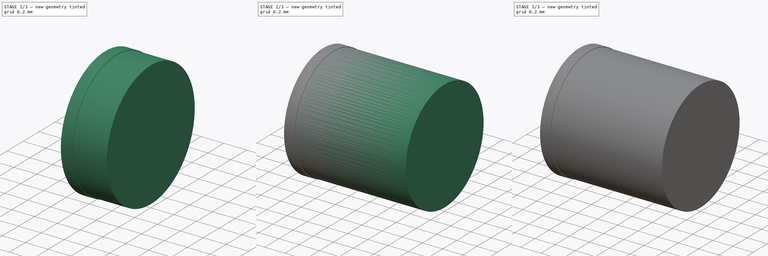
[diagram: build sequence overview — one tinted view per stage of 3, left to right]
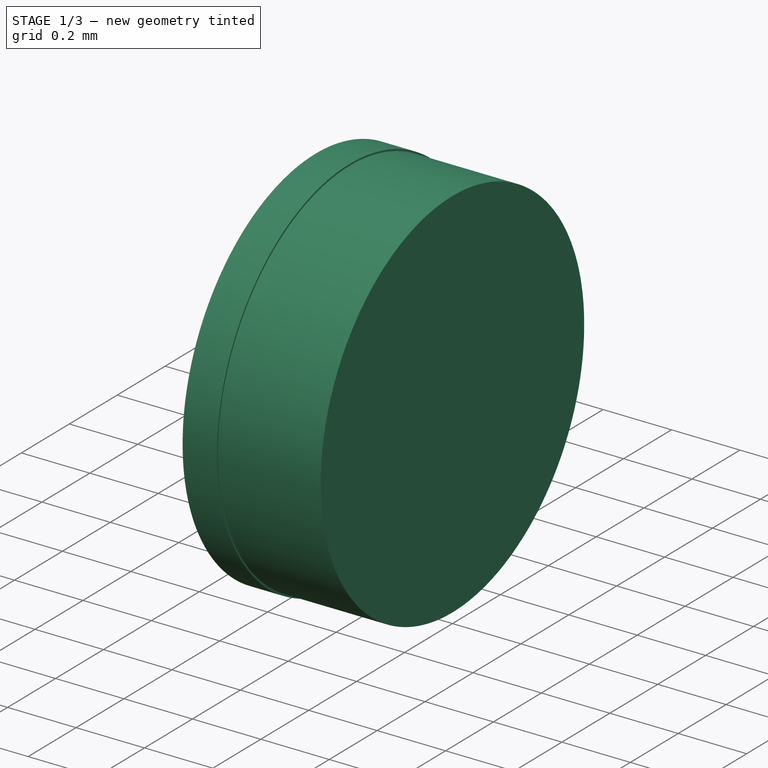
[diagram: stage 1 of 3 — iso view after this stage's code; geometry added in this stage tinted green]
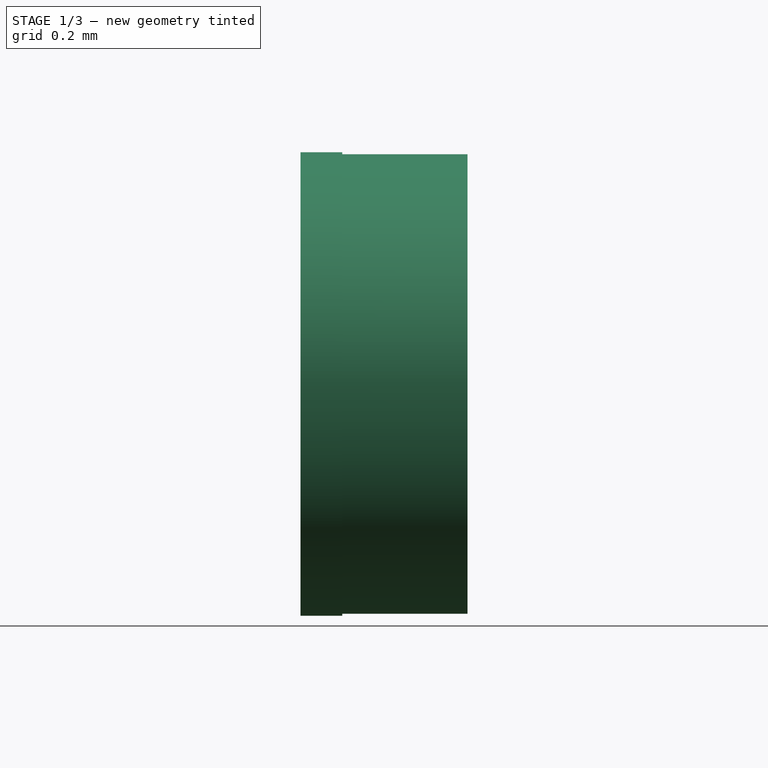
[diagram: stage 1 of 3 — front view after this stage's code; geometry added in this stage tinted green]
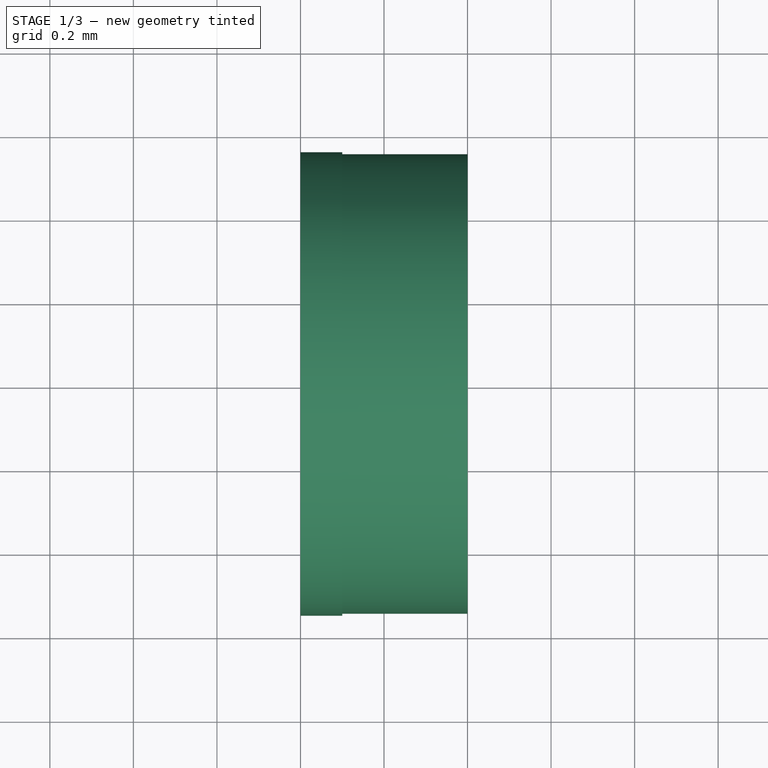
[diagram: stage 1 of 3 — top view after this stage's code; geometry added in this stage tinted green]
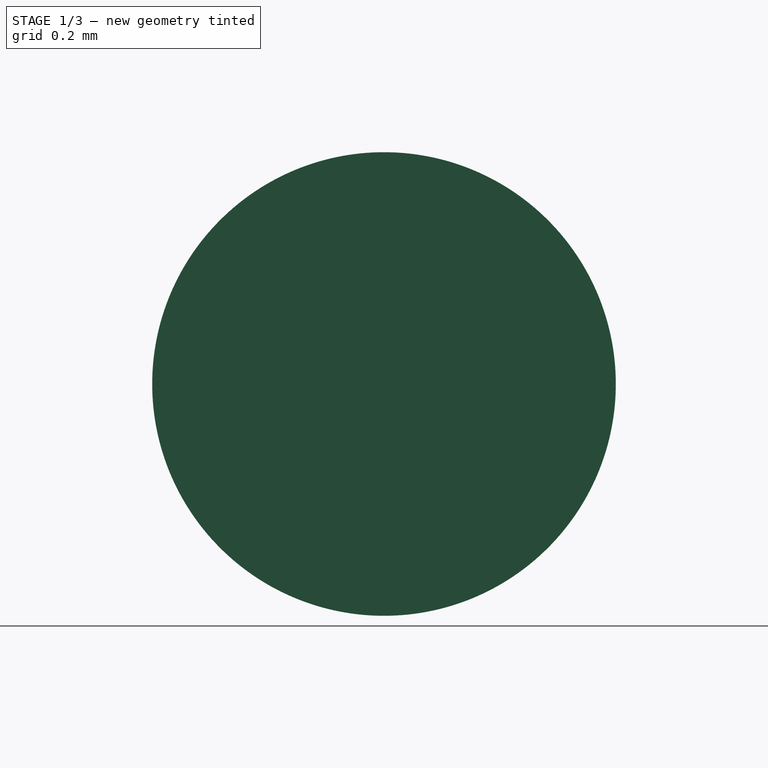
[diagram: stage 1 of 3 — right view after this stage's code; geometry added in this stage tinted green]
FCSTD DOCUMENT  (FreeCAD 0.18R4 (GitTag))
Label: diodeSmdSodMelf
License: All rights reserved
LicenseURL: http://en.wikipedia.org/wiki/All_rights_reserved
objects: Sketcher::SketchObject×4, PartDesign::Pad×4, PartDesign::Body×4, PartDesign::Chamfer×2, Spreadsheet::Sheet×1, App::Part×1
note: 18 computed .brp shape members not serialized (recipe doc carries the construction recipe); baked Part::Feature solids carry a one-line shape summary decoded from their .brp

FEATURE [PartDesign::Body] Body001
  Group = -> [Sketch001,Pad001]
  Origin = -> Origin002
  Placement = pos=(0.4,0,0) rot=(0,0,1;0rad)
  Tip = -> Pad001
  expr: Placement.Base.x = Spreadsheet.B1
FEATURE [Sketcher::SketchObject] Sketch002
  MapMode = 5
  Placement = pos=(0,0,0) rot=(0.57735,0.57735,0.57735;2.0944rad)
  Support = -> [YZ_Plane003]
  expr: Constraints[2] = Spreadsheet.B4
  expr: Constraints[1] = Spreadsheet.B2
  sketch-geometry (1):
    g0: Circle CenterX=0 CenterY=0.55 CenterZ=0 NormalX=0 NormalY=0 NormalZ=1 AngleXU=0 Radius=0.55
  constraints (3):
    c: PointOnObject(g0,g-2)
    c: Diameter(g0) = 1.1
    c: DistanceY(g0) = 0.55
FEATURE [PartDesign::Pad] Pad002
  Length = 0.4
  Length2 = 100
  Placement = pos=(0,0,0) rot=(0.57735,0.57735,0.57735;2.0944rad)
  Profile = -> Sketch002
  Type = 0
  expr: Length = Spreadsheet.B1
FEATURE [PartDesign::Body] Body002
  Group = -> [Sketch002,Pad002,Chamfer001]
  Origin = -> Origin003
  Placement = pos=(1.6,0,0) rot=(0,0,1;0rad)
  Tip = -> Chamfer001
  expr: Placement.Base.x = Spreadsheet.F3
FEATURE [Sketcher::SketchObject] Sketch003
  MapMode = 5
  Placement = pos=(0,0,0) rot=(0.57735,0.57735,0.57735;2.0944rad)
  Support = -> [YZ_Plane004]
  expr: Constraints[2] = Spreadsheet.B4
  expr: Constraints[1] = Spreadsheet.F2
  sketch-geometry (1):
    g0: Circle CenterX=0 CenterY=0.55 CenterZ=0 NormalX=0 NormalY=0 NormalZ=1 AngleXU=0 Radius=0.555
  constraints (3):
    c: PointOnObject(g0,g-2)
    c: Diameter(g0) = 1.11
    c: DistanceY(g0) = 0.55
FEATURE [PartDesign::Pad] Pad003
  Length = 0.1
  Length2 = 100
  Placement = pos=(0,0,0) rot=(0.57735,0.57735,0.57735;2.0944rad)
  Profile = -> Sketch003
  Type = 0
FEATURE [PartDesign::Body] Body003
  Group = -> [Sketch003,Pad003]
  Origin = -> Origin004
  Placement = pos=(0.6,0,0) rot=(0,0,1;0rad)
  Tip = -> Pad003
  expr: Placement.Base.x = Spreadsheet.F4
FEATURE [App::Part] Part
  Group = -> [Body,Body001,Body002,Body003,Spreadsheet]
  Origin = -> Origin
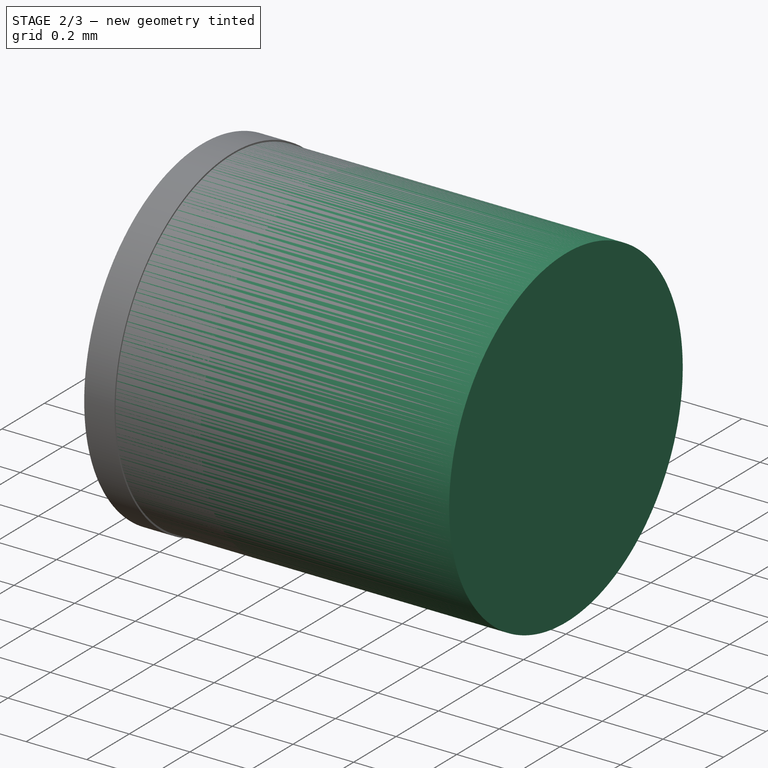
[diagram: stage 2 of 3 — iso view after this stage's code; geometry added in this stage tinted green]
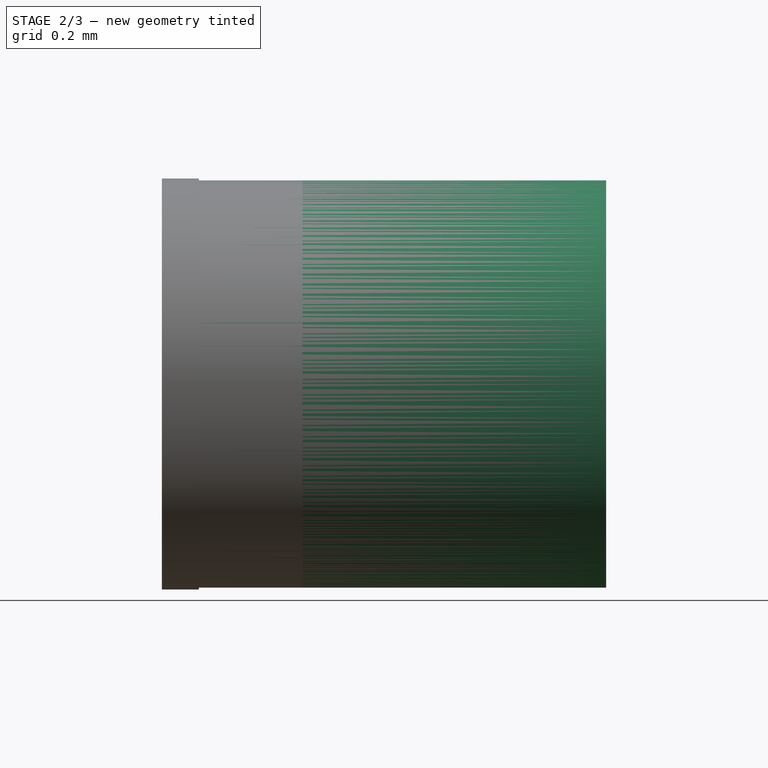
[diagram: stage 2 of 3 — front view after this stage's code; geometry added in this stage tinted green]
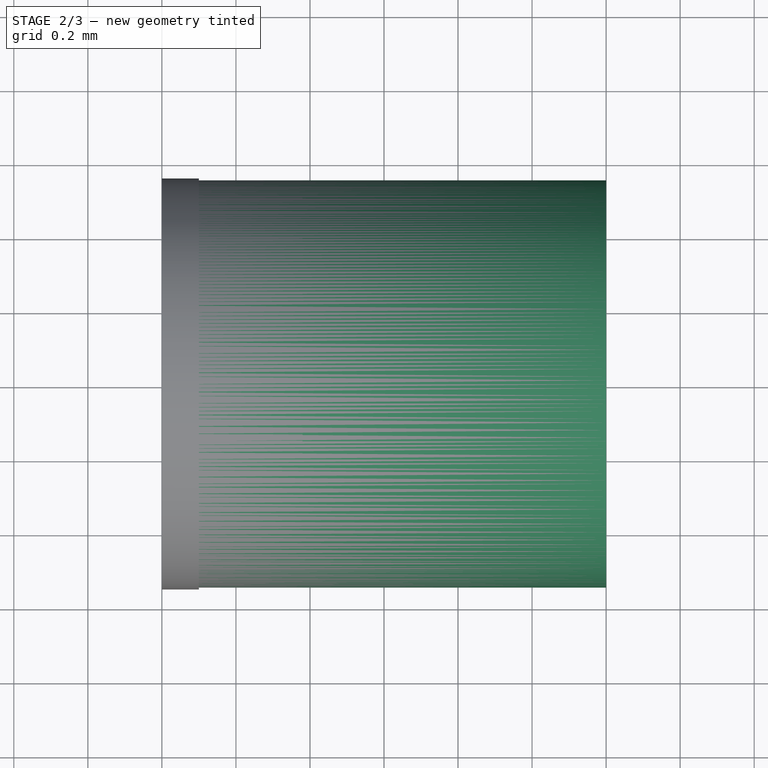
[diagram: stage 2 of 3 — top view after this stage's code; geometry added in this stage tinted green]
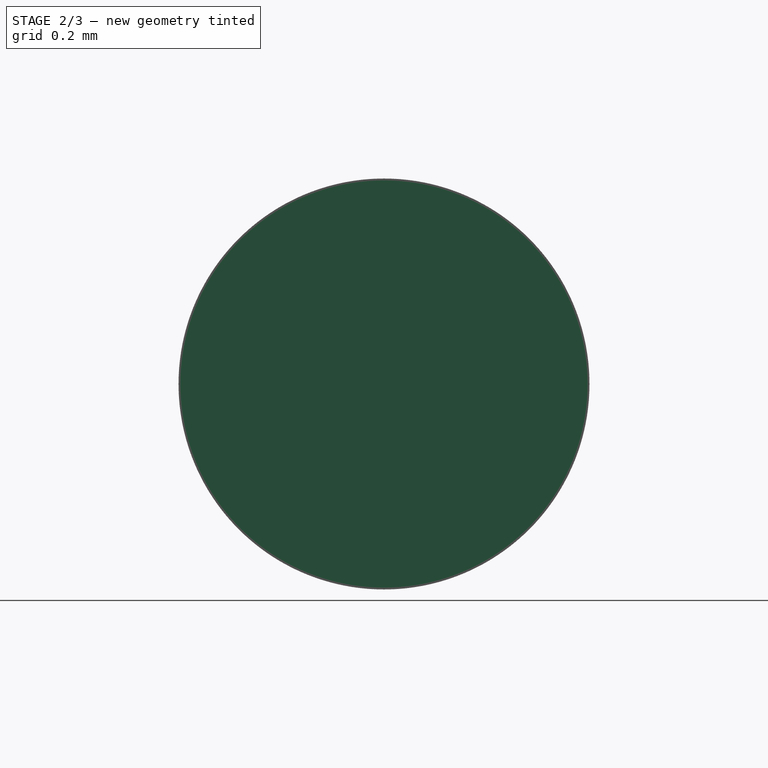
[diagram: stage 2 of 3 — right view after this stage's code; geometry added in this stage tinted green]
FEATURE [PartDesign::Body] Body
  Group = -> [Sketch,Pad,Chamfer]
  Origin = -> Origin001
  Tip = -> Chamfer
FEATURE [Spreadsheet::Sheet] Spreadsheet
  cells = A1=k; B1=0.4; C1=mm; A2=D; B2=1.1; C2=mm; E2=D+0.01; F2==B2 + 0.01; A3=l1; B3=1.2; E3=l1+k; F3==B3 + B1; G3=mm; A4=p1; B4==B2 / 2; C4=mm; E4=p2; F4==B1 + 0.2
FEATURE [Sketcher::SketchObject] Sketch001
  MapMode = 5
  Placement = pos=(0,0,0) rot=(0.57735,0.57735,0.57735;2.0944rad)
  Support = -> [YZ_Plane002]
  expr: Constraints[2] = Spreadsheet.B4
  expr: Constraints[1] = Spreadsheet.B2
  sketch-geometry (1):
    g0: Circle CenterX=0 CenterY=0.55 CenterZ=0 NormalX=0 NormalY=0 NormalZ=1 AngleXU=0 Radius=0.55
  constraints (3):
    c: PointOnObject(g0,g-2)
    c: Diameter(g0) = 1.1
    c: DistanceY(g0) = 0.55
FEATURE [PartDesign::Pad] Pad001
  Length = 1.2
  Length2 = 100
  Placement = pos=(0,0,0) rot=(0.57735,0.57735,0.57735;2.0944rad)
  Profile = -> Sketch001
  Type = 0
  expr: Length = Spreadsheet.B3
FEATURE [PartDesign::Chamfer] Chamfer001
  Base = -> Pad002 [Edge3]
  BaseFeature = -> Pad002
  Placement = pos=(0,0,0) rot=(0.57735,0.57735,0.57735;2.0944rad)
  Size = 0.02
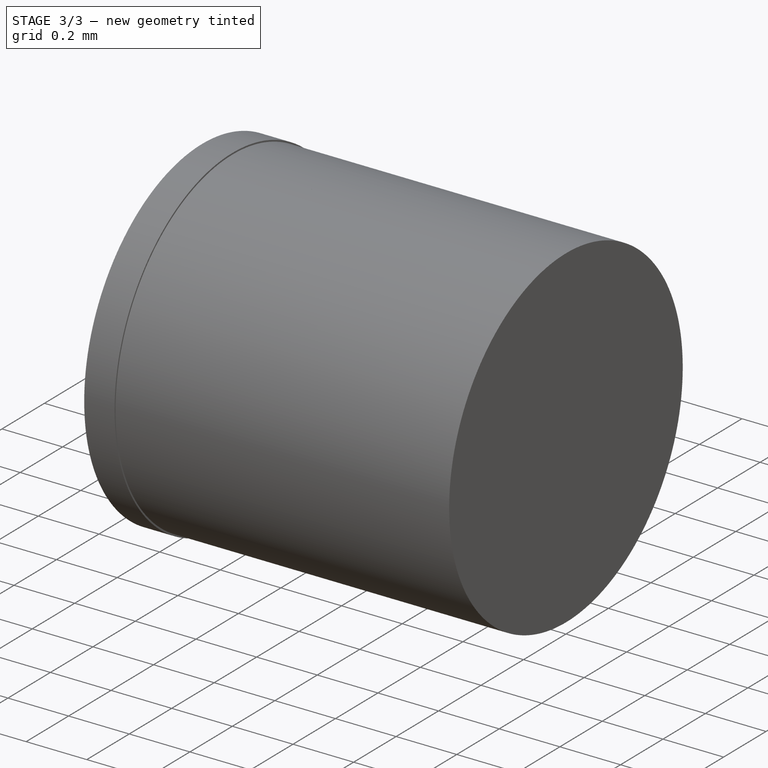
[diagram: stage 3 of 3 — iso view after this stage's code; geometry added in this stage tinted green]
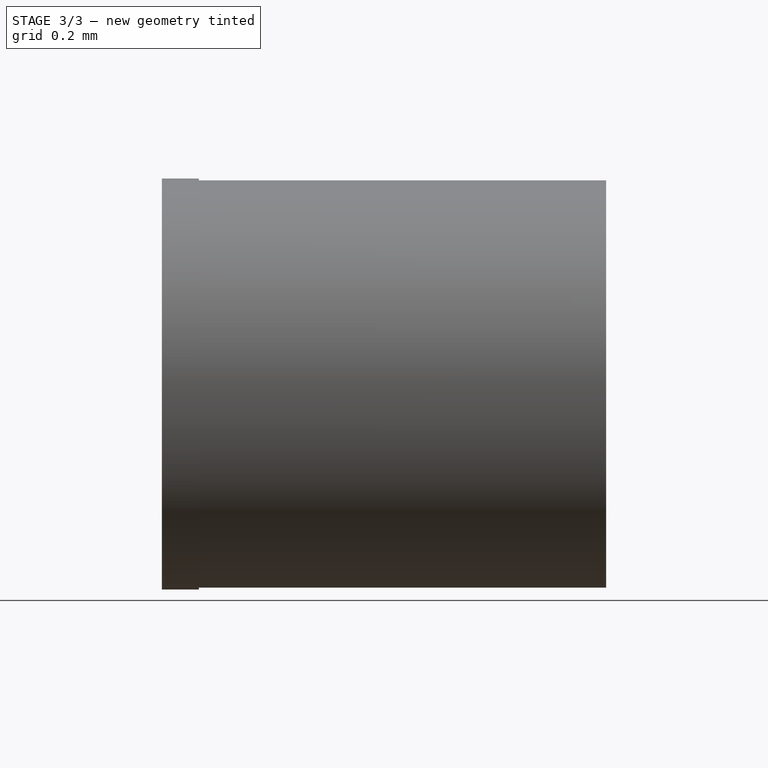
[diagram: stage 3 of 3 — front view after this stage's code; geometry added in this stage tinted green]
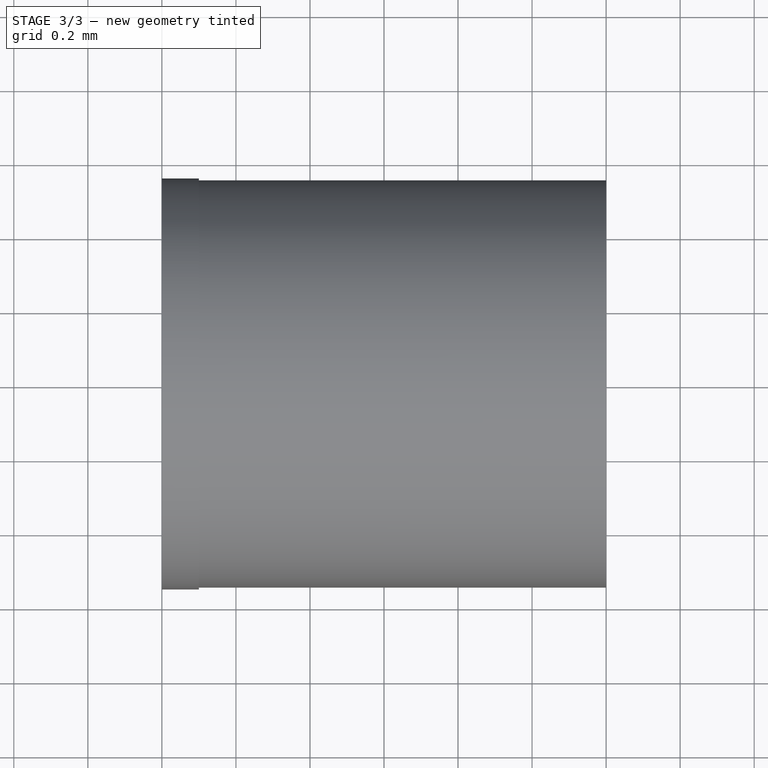
[diagram: stage 3 of 3 — top view after this stage's code; geometry added in this stage tinted green]
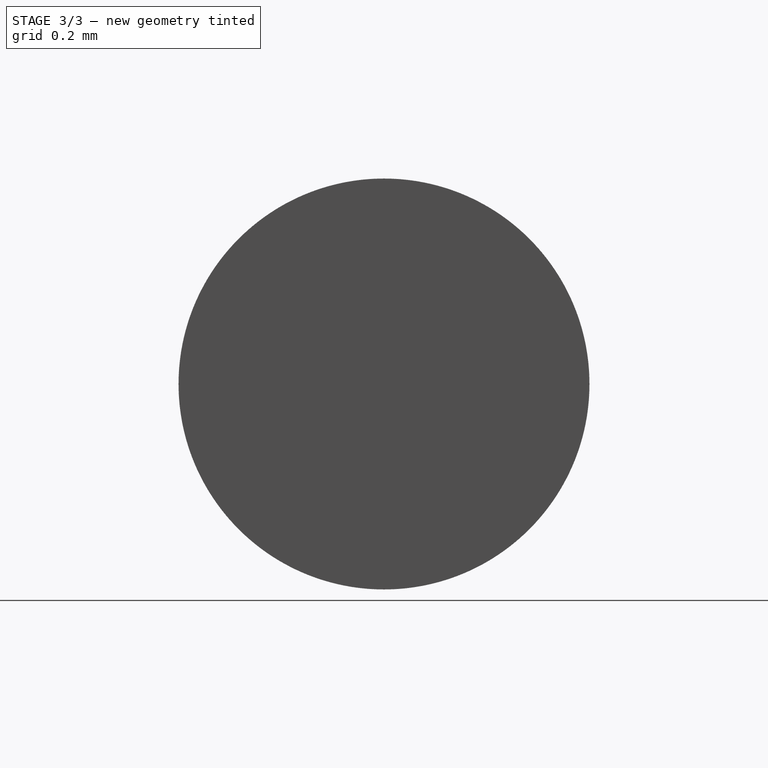
[diagram: stage 3 of 3 — right view after this stage's code; geometry added in this stage tinted green]
FEATURE [Sketcher::SketchObject] Sketch
  MapMode = 5
  Placement = pos=(0,0,0) rot=(0.57735,0.57735,0.57735;2.0944rad)
  Support = -> [YZ_Plane001]
  expr: Constraints[1] = Spreadsheet.B4
  expr: Constraints[2] = Spreadsheet.B2
  sketch-geometry (1):
    g0: Circle CenterX=0 CenterY=0.55 CenterZ=0 NormalX=0 NormalY=0 NormalZ=1 AngleXU=0 Radius=0.55
  constraints (3):
    c: PointOnObject(g0,g-2)
    c: DistanceY(g-1,g0) = 0.55
    c: Diameter(g0) = 1.1
FEATURE [PartDesign::Pad] Pad
  Length = 0.4
  Length2 = 100
  Placement = pos=(0,0,0) rot=(0.57735,0.57735,0.57735;2.0944rad)
  Profile = -> Sketch
  Type = 0
  expr: Length = Spreadsheet.B1
FEATURE [PartDesign::Chamfer] Chamfer
  Base = -> Pad [Edge2]
  BaseFeature = -> Pad
  Placement = pos=(0,0,0) rot=(0.57735,0.57735,0.57735;2.0944rad)
  Size = 0.02
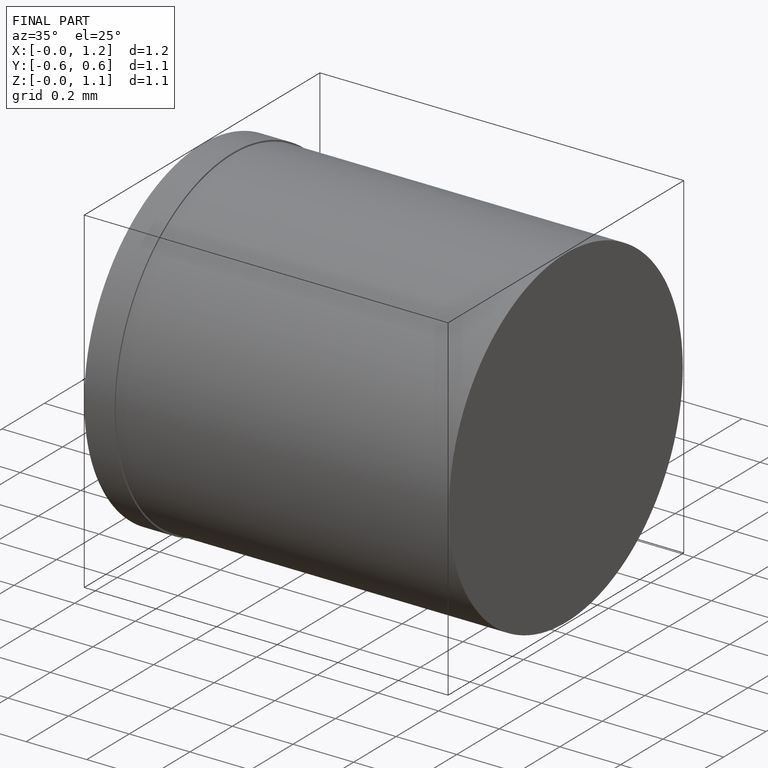
[diagram: finished part — iso view with bounding-box wireframe]
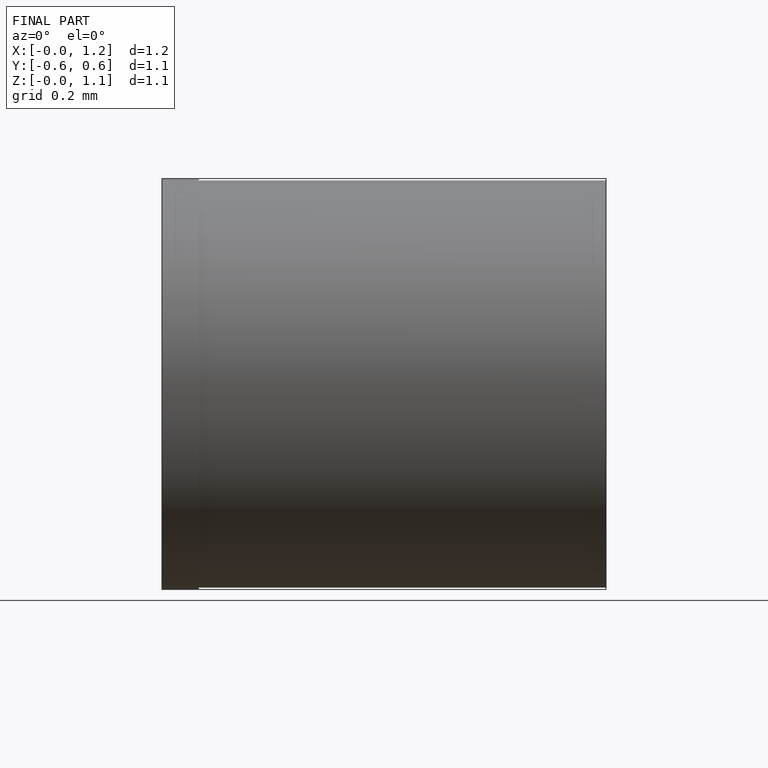
[diagram: finished part — front view with bounding-box wireframe]
